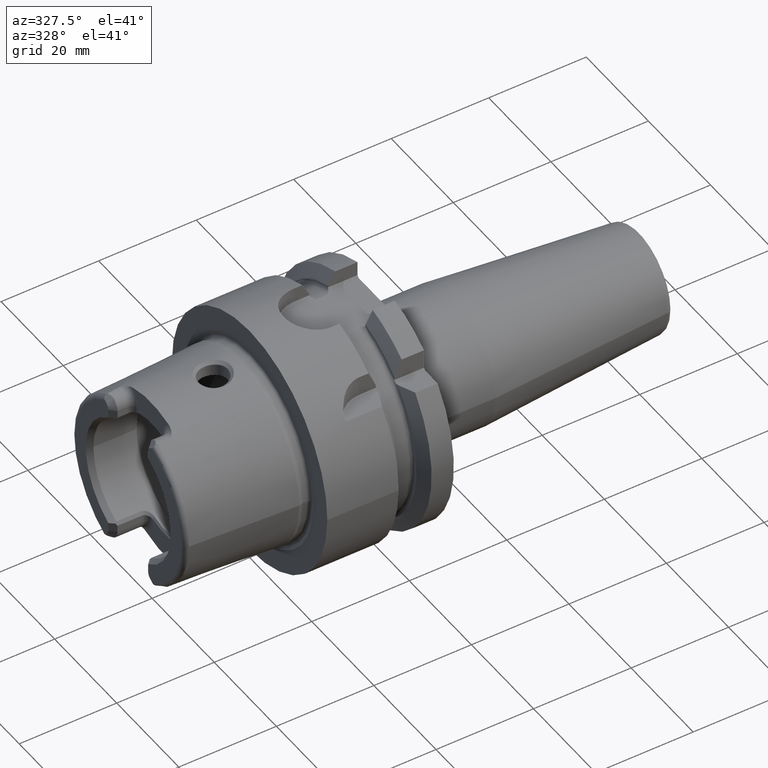
[diagram: clean part render]
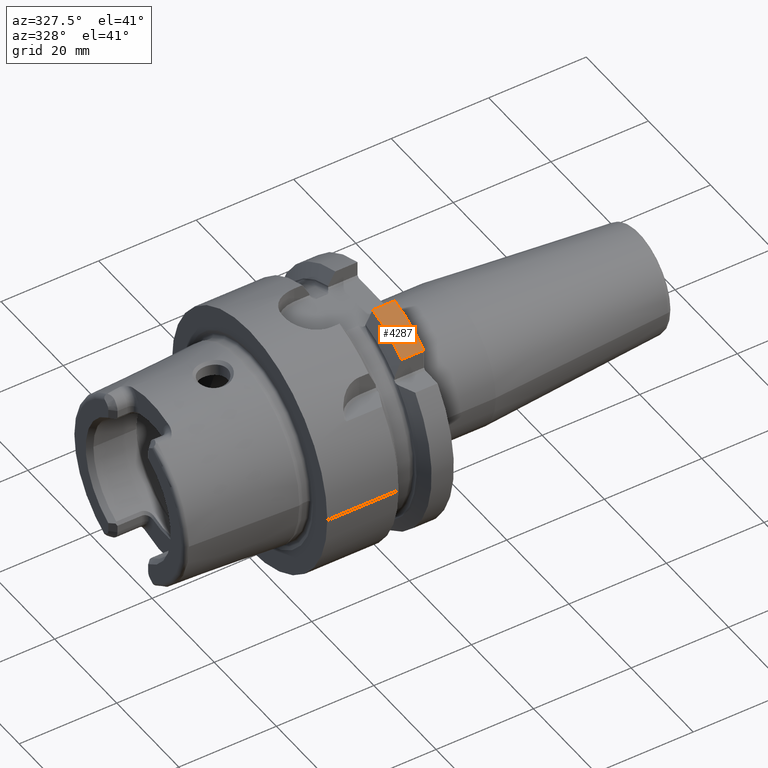
[diagram: same view with one face highlighted and labeled with its STEP entity id]
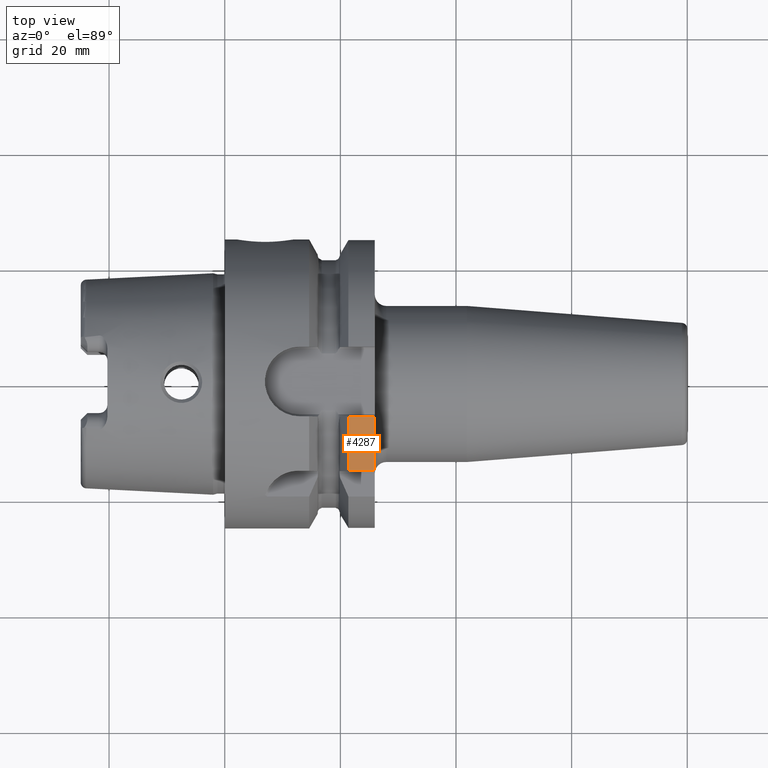
[diagram: same view with one face highlighted and labeled with its STEP entity id]
A machine part, auxiliary view. The second image highlights one B-rep face of the part: STEP entity #4287.
A second angle (top view) of the same face is appended — the face is thin or edge-on in the first view.
In plain terms, the highlighted cylindrical surface (partial cylindrical patch) has radius 25 mm, axis along (1, 0, 0).
Its self-contained STEP definition (entity closure, byte-faithful):
#1001=CARTESIAN_POINT('',(2.139193283149E1,0.E0,0.E0));
#1002=DIRECTION('',(1.E0,0.E0,0.E0));
#1003=DIRECTION('',(0.E0,-2.407E-1,9.705995621264E-1));
#1004=AXIS2_PLACEMENT_3D('',#1001,#1002,#1003);
#1006=DIRECTION('',(1.E0,0.E0,0.E0));
#1007=VECTOR('',#1006,4.558067168511E0);
#1008=CARTESIAN_POINT('',(2.139193283149E1,-6.0175E0,2.426498905316E1));
#1009=LINE('',#1008,#1007);
#1010=CARTESIAN_POINT('',(2.595E1,0.E0,0.E0));
#1011=DIRECTION('',(1.E0,0.E0,0.E0));
#1012=DIRECTION('',(0.E0,-2.407E-1,9.705995621264E-1));
#1013=AXIS2_PLACEMENT_3D('',#1010,#1011,#1012);
#1015=DIRECTION('',(1.E0,0.E0,0.E0));
#1016=VECTOR('',#1015,4.558067168511E0);
#1017=CARTESIAN_POINT('',(2.139193283149E1,-1.535E1,1.973265060756E1));
#1018=LINE('',#1017,#1016);
#1203=CARTESIAN_POINT('',(2.139193283149E1,-6.0175E0,2.426498905316E1));
#1825=CARTESIAN_POINT('',(2.139193283149E1,-1.535E1,1.973265060756E1));
#2934=VERTEX_POINT('',#1203);
#3016=VERTEX_POINT('',#1825);
#3114=CARTESIAN_POINT('',(2.595E1,-1.535E1,1.973265060756E1));
#3115=VERTEX_POINT('',#3114);
#3156=CARTESIAN_POINT('',(2.595E1,-6.0175E0,2.426498905316E1));
#3157=VERTEX_POINT('',#3156);
#4272=CARTESIAN_POINT('',(-2.74425E1,0.E0,0.E0));
#4273=DIRECTION('',(1.E0,0.E0,0.E0));
#4274=DIRECTION('',(0.E0,-1.E0,0.E0));
#4275=AXIS2_PLACEMENT_3D('',#4272,#4273,#4274);
#4276=CYLINDRICAL_SURFACE('',#4275,2.5E1);
#4278=ORIENTED_EDGE('',*,*,#4277,.F.);
#4280=ORIENTED_EDGE('',*,*,#4279,.T.);
#4282=ORIENTED_EDGE('',*,*,#4281,.T.);
#4284=ORIENTED_EDGE('',*,*,#4283,.F.);
#4285=EDGE_LOOP('',(#4278,#4280,#4282,#4284));
#4286=FACE_OUTER_BOUND('',#4285,.F.);
#4287=ADVANCED_FACE('',(#4286),#4276,.T.);
#1005=CIRCLE('',#1004,2.5E1);
#1014=CIRCLE('',#1013,2.5E1);
#4277=EDGE_CURVE('',#2934,#3016,#1005,.T.);
#4279=EDGE_CURVE('',#2934,#3157,#1009,.T.);
#4281=EDGE_CURVE('',#3157,#3115,#1014,.T.);
#4283=EDGE_CURVE('',#3016,#3115,#1018,.T.);